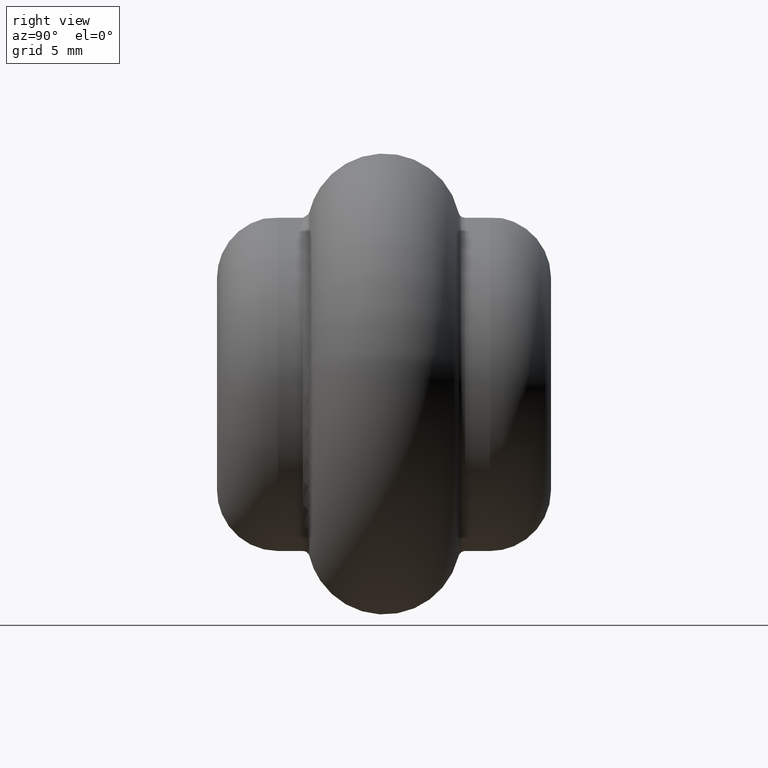
[diagram: clean part render]
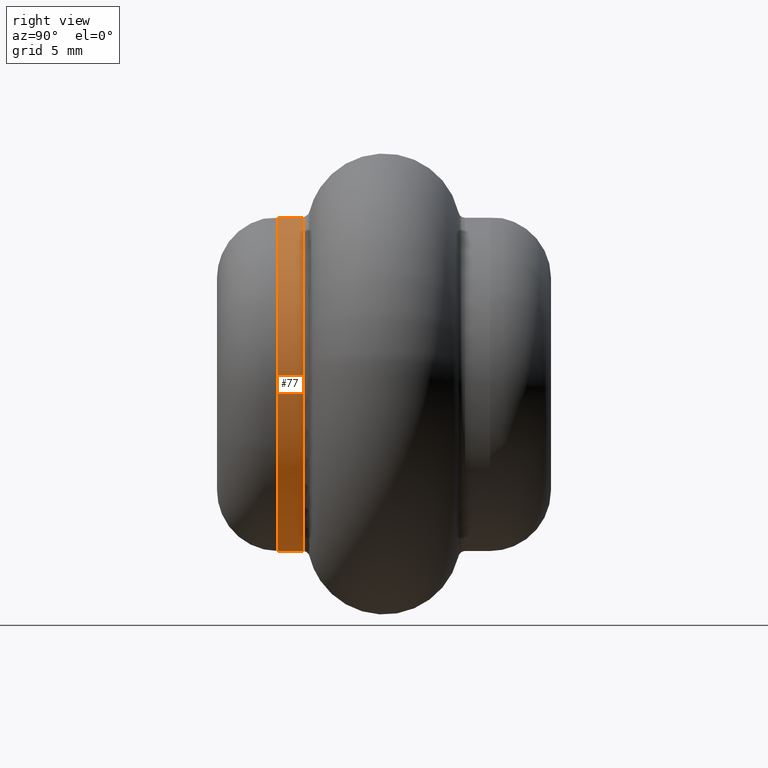
[diagram: same view with one face highlighted and labeled with its STEP entity id]
A machine part, right view. The second image highlights one B-rep face of the part: STEP entity #77.
In plain terms, the highlighted cylindrical surface (bore or boss wall) has radius 12.5 mm, axis along (-0, -1, -0).
Its self-contained STEP definition (entity closure, byte-faithful):
#18 = EDGE_CURVE ( 'NONE', #306, #306, #43, .T. ) ;
#21 = CARTESIAN_POINT ( 'NONE',  ( 0.000000000000000000, -12.50000000000000000, 0.000000000000000000 ) ) ;
#22 = AXIS2_PLACEMENT_3D ( 'NONE', #21, #238, #285 ) ;
#25 = EDGE_LOOP ( 'NONE', ( #118 ) ) ;
#32 = DIRECTION ( 'NONE',  ( -0.000000000000000000, -1.000000000000000000, -0.000000000000000000 ) ) ;
#43 = CIRCLE ( 'NONE', #230, 12.50000000000000000 ) ;
#77 = ADVANCED_FACE ( 'NONE', ( #92, #170 ), #151, .T. ) ;
#78 = AXIS2_PLACEMENT_3D ( 'NONE', #292, #32, #163 ) ;
#92 = FACE_OUTER_BOUND ( 'NONE', #25, .T. ) ;
#97 = CARTESIAN_POINT ( 'NONE',  ( 0.000000000000000000, -7.936961005306948813, 0.000000000000000000 ) ) ;
#102 = EDGE_CURVE ( 'NONE', #235, #235, #159, .T. ) ;
#116 = CARTESIAN_POINT ( 'NONE',  ( 0.000000000000000000, -7.936961005306948813, -12.50000000000000000 ) ) ;
#118 = ORIENTED_EDGE ( 'NONE', *, *, #102, .T. ) ;
#151 = CYLINDRICAL_SURFACE ( 'NONE', #22, 12.50000000000000000 ) ;
#155 = EDGE_LOOP ( 'NONE', ( #315 ) ) ;
#159 = CIRCLE ( 'NONE', #78, 12.50000000000000000 ) ;
#163 = DIRECTION ( 'NONE',  ( 0.000000000000000000, 0.000000000000000000, -1.000000000000000000 ) ) ;
#170 = FACE_OUTER_BOUND ( 'NONE', #155, .T. ) ;
#230 = AXIS2_PLACEMENT_3D ( 'NONE', #97, #280, #288 ) ;
#235 = VERTEX_POINT ( 'NONE', #275 ) ;
#238 = DIRECTION ( 'NONE',  ( -0.000000000000000000, -1.000000000000000000, -0.000000000000000000 ) ) ;
#275 = CARTESIAN_POINT ( 'NONE',  ( 0.000000000000000000, -6.067330549755800995, -12.50000000000000000 ) ) ;
#280 = DIRECTION ( 'NONE',  ( -0.000000000000000000, -1.000000000000000000, -0.000000000000000000 ) ) ;
#285 = DIRECTION ( 'NONE',  ( 0.000000000000000000, 0.000000000000000000, -1.000000000000000000 ) ) ;
#288 = DIRECTION ( 'NONE',  ( 0.000000000000000000, 0.000000000000000000, -1.000000000000000000 ) ) ;
#292 = CARTESIAN_POINT ( 'NONE',  ( 0.000000000000000000, -6.067330549755800995, 0.000000000000000000 ) ) ;
#306 = VERTEX_POINT ( 'NONE', #116 ) ;
#315 = ORIENTED_EDGE ( 'NONE', *, *, #18, .F. ) ;